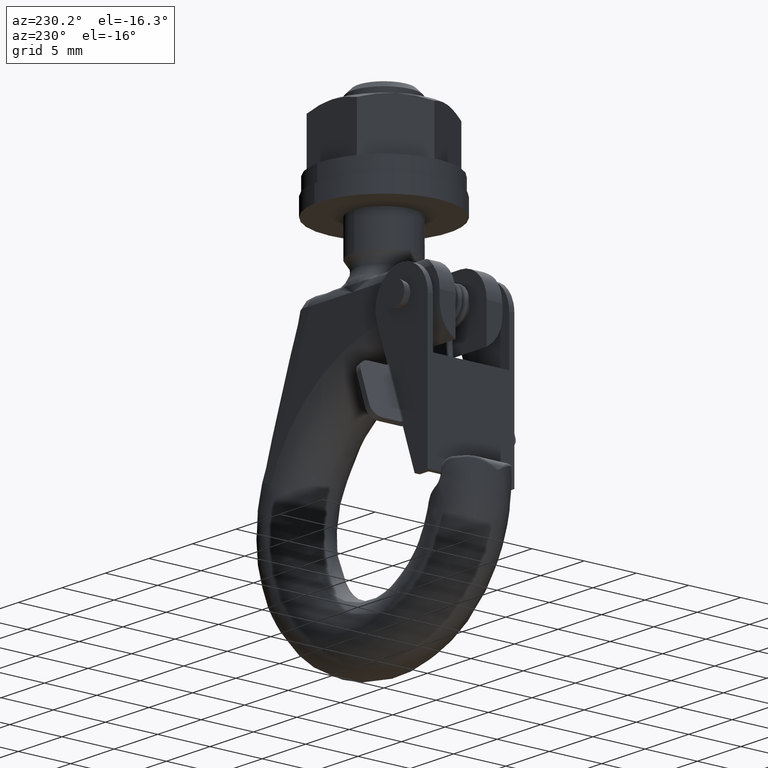
[diagram: clean part render]
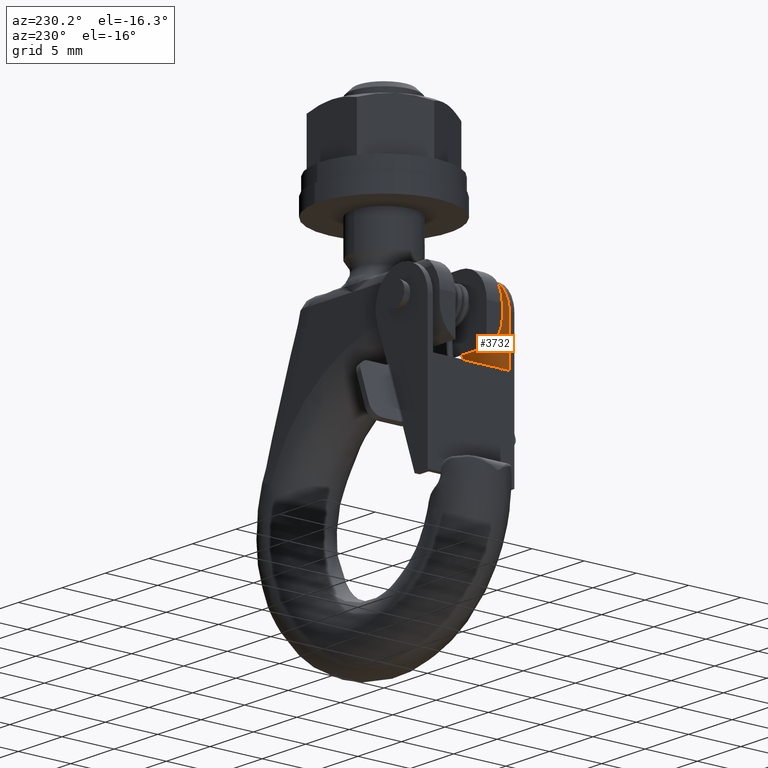
[diagram: same view with one face highlighted and labeled with its STEP entity id]
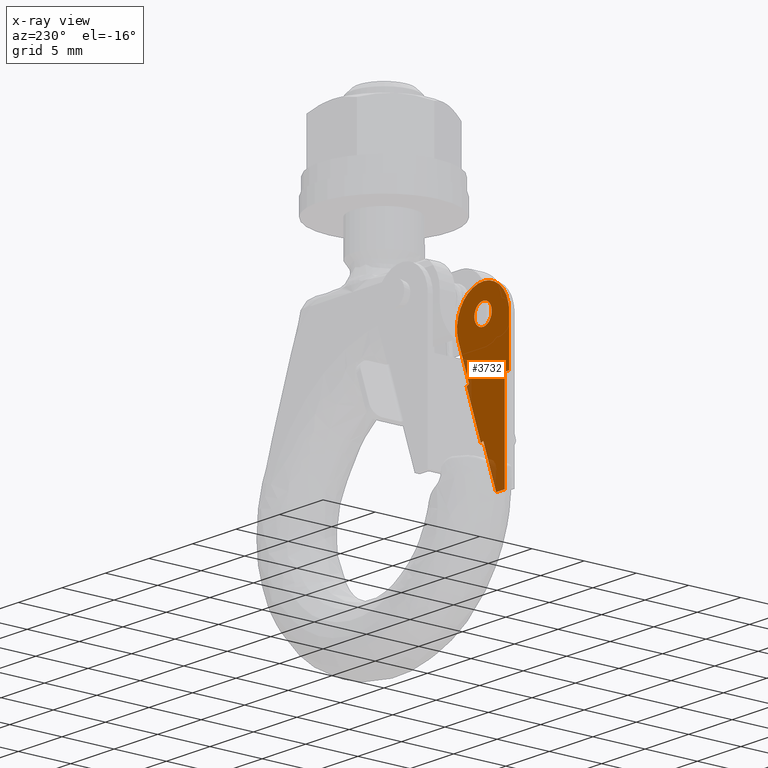
[diagram: x-ray of the same camera — body ghosted, the highlighted face saturated]
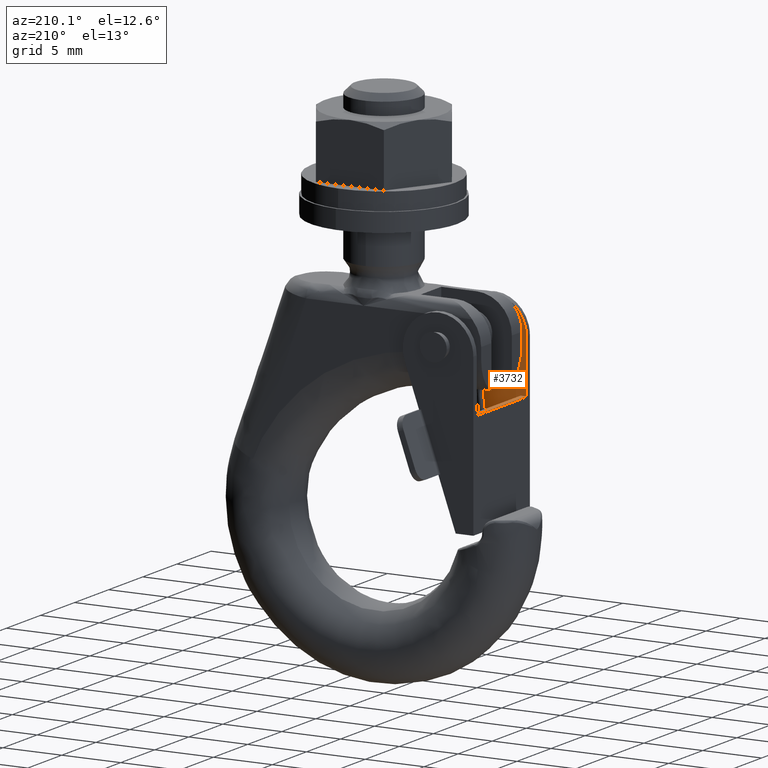
[diagram: same view with one face highlighted and labeled with its STEP entity id]
A machine part, auxiliary view. The second image highlights one B-rep face of the part: STEP entity #3732.
The next image is the same camera in x-ray: the body ghosted, the highlighted face saturated — about 4% of this face is hidden behind the body in this view.
A second angle (auxiliary view) of the same face is appended — the face is thin or edge-on in the first view.
In plain terms, the highlighted face is a freeform B-spline surface patch.
Its self-contained STEP definition (entity closure, byte-faithful):
#2635=CARTESIAN_POINT('',(-7.993009526350031,-3.649994000000101,14.118034234771480));
#2636=VERTEX_POINT('',#2635);
#2637=CARTESIAN_POINT('',(-7.0,-3.649994000000100,13.0));
#2638=VERTEX_POINT('',#2637);
#2639=CARTESIAN_POINT('',(-7.993009526350031,-3.649994000000100,14.118034234771478));
#2640=CARTESIAN_POINT('',(-8.0,-3.649994000000100,14.059224119767839));
#2641=CARTESIAN_POINT('',(-8.0,-3.649994000000100,14.0));
#2642=CARTESIAN_POINT('',(-8.0,-3.649994000000101,13.000000000000004));
#2643=CARTESIAN_POINT('',(-7.0,-3.649994000000100,13.0));
#2651=(BOUNDED_CURVE()B_SPLINE_CURVE(2,(#2639,#2640,#2641,#2642,#2643),.UNSPECIFIED.,.F.,.U.)B_SPLINE_CURVE_WITH_KNOTS((3,2,3),(0.229562473476596,0.250000000000000,0.500000000000000),.UNSPECIFIED.)CURVE()GEOMETRIC_REPRESENTATION_ITEM()RATIONAL_B_SPLINE_CURVE((0.956026754111350,0.976055948287900,1.0,0.707106781186548,1.0))REPRESENTATION_ITEM(''));
#2652=EDGE_CURVE('',#2636,#2638,#2651,.T.);
#2693=CARTESIAN_POINT('',(-6.001865201593130,-3.649994000000100,13.938951460219959));
#2694=VERTEX_POINT('',#2693);
#2700=CARTESIAN_POINT('',(-7.0,-3.649994000000100,13.0));
#2701=CARTESIAN_POINT('',(-6.059293933557320,-3.649994000000100,13.000000000000004));
#2702=CARTESIAN_POINT('',(-6.001865201593130,-3.649994000000100,13.938951460219959));
#2710=(BOUNDED_CURVE()B_SPLINE_CURVE(2,(#2700,#2701,#2702),.UNSPECIFIED.,.F.,.U.)B_SPLINE_CURVE_WITH_KNOTS((3,3),(0.500000000000000,0.739332962157199),.UNSPECIFIED.)CURVE()GEOMETRIC_REPRESENTATION_ITEM()RATIONAL_B_SPLINE_CURVE((1.0,0.719603993382479,0.976072041491526))REPRESENTATION_ITEM(''));
#2711=EDGE_CURVE('',#2638,#2694,#2710,.T.);
#2734=CARTESIAN_POINT('',(-7.0,-3.649994000000100,15.0));
#2735=VERTEX_POINT('',#2734);
#2736=CARTESIAN_POINT('',(-7.0,-3.649994000000100,15.0));
#2737=CARTESIAN_POINT('',(-7.888174525744710,-3.649994000000100,15.000000000000004));
#2738=CARTESIAN_POINT('',(-7.993009526350031,-3.649994000000101,14.118034234771477));
#2746=(BOUNDED_CURVE()B_SPLINE_CURVE(2,(#2736,#2737,#2738),.UNSPECIFIED.,.F.,.U.)B_SPLINE_CURVE_WITH_KNOTS((3,3),(0.0,0.229562473476596),.UNSPECIFIED.)CURVE()GEOMETRIC_REPRESENTATION_ITEM()RATIONAL_B_SPLINE_CURVE((1.0,0.731050832898648,0.956026754111350))REPRESENTATION_ITEM(''));
#2747=EDGE_CURVE('',#2735,#2636,#2746,.T.);
#2749=CARTESIAN_POINT('',(-6.001865201593130,-3.649994000000101,13.938951460219961));
#2750=CARTESIAN_POINT('',(-5.999999999999999,-3.649994000000101,13.969447236455540));
#2751=CARTESIAN_POINT('',(-6.0,-3.649994000000100,14.0));
#2752=CARTESIAN_POINT('',(-6.0,-3.649994000000101,14.999999999999995));
#2753=CARTESIAN_POINT('',(-7.0,-3.649994000000100,15.0));
#2761=(BOUNDED_CURVE()B_SPLINE_CURVE(2,(#2749,#2750,#2751,#2752,#2753),.UNSPECIFIED.,.F.,.U.)B_SPLINE_CURVE_WITH_KNOTS((3,2,3),(0.739332962157199,0.750000000000000,1.0),.UNSPECIFIED.)CURVE()GEOMETRIC_REPRESENTATION_ITEM()RATIONAL_B_SPLINE_CURVE((0.976072041491524,0.987502787804068,1.0,0.707106781186548,1.0))REPRESENTATION_ITEM(''));
#2762=EDGE_CURVE('',#2694,#2735,#2761,.T.);
#2937=CARTESIAN_POINT('',(-5.107966332229609,-3.649994000000000,8.878857992058922));
#2938=VERTEX_POINT('',#2937);
#2961=CARTESIAN_POINT('',(-6.744044208547670,-3.649994000000000,4.154111349233520));
#2962=VERTEX_POINT('',#2961);
#2976=CARTESIAN_POINT('',(-5.107966332229609,-3.649994000000000,8.878857992058922));
#2977=CARTESIAN_POINT('',(-6.744044208547670,-3.649994000000000,4.154111349233520));
#2978=QUASI_UNIFORM_CURVE('',1,(#2976,#2977),.UNSPECIFIED.,.F.,.U.);
#2979=EDGE_CURVE('',#2938,#2962,#2978,.T.);
#3464=CARTESIAN_POINT('',(-7.027519187421290,-3.649994000000100,4.252271294710510));
#3465=VERTEX_POINT('',#3464);
#3466=CARTESIAN_POINT('',(-6.744044208547670,-3.649994000000000,4.154111349233520));
#3467=CARTESIAN_POINT('',(-7.027519187421290,-3.649994000000100,4.252271294710510));
#3468=QUASI_UNIFORM_CURVE('',1,(#3466,#3467),.UNSPECIFIED.,.F.,.U.);
#3469=EDGE_CURVE('',#2962,#3465,#3468,.T.);
#3520=CARTESIAN_POINT('',(-5.391430622019710,-3.649994000000000,8.977013636226650));
#3521=VERTEX_POINT('',#3520);
#3522=CARTESIAN_POINT('',(-5.391430622019710,-3.649994000000000,8.977013636226650));
#3523=CARTESIAN_POINT('',(-5.107966332229609,-3.649994000000000,8.878857992058922));
#3524=QUASI_UNIFORM_CURVE('',1,(#3522,#3523),.UNSPECIFIED.,.F.,.U.);
#3525=EDGE_CURVE('',#3521,#2938,#3524,.T.);
#3552=CARTESIAN_POINT('',(-10.000000000001560,-3.649994000000210,9.000024782773728));
#3553=VERTEX_POINT('',#3552);
#3559=CARTESIAN_POINT('',(-9.500000000000000,-3.649994000000100,9.000024782775279));
#3560=VERTEX_POINT('',#3559);
#3561=CARTESIAN_POINT('',(-10.000000000001560,-3.649994000000210,9.000024782773728));
#3562=CARTESIAN_POINT('',(-9.500000000000000,-3.649994000000100,9.000024782775279));
#3563=QUASI_UNIFORM_CURVE('',1,(#3561,#3562),.UNSPECIFIED.,.F.,.U.);
#3564=EDGE_CURVE('',#3553,#3560,#3563,.T.);
#3587=CARTESIAN_POINT('',(-9.500000000000000,-3.649994000000100,0.0));
#3588=VERTEX_POINT('',#3587);
#3589=CARTESIAN_POINT('',(-9.500000000000000,-3.649994000000100,9.000024782775279));
#3590=CARTESIAN_POINT('',(-9.500000000000000,-3.649994000000100,0.0));
#3591=QUASI_UNIFORM_CURVE('',1,(#3589,#3590),.UNSPECIFIED.,.F.,.U.);
#3592=EDGE_CURVE('',#3560,#3588,#3591,.T.);
#3671=CARTESIAN_POINT('',(-10.299686140063850,-3.649994000000100,-0.823982521438727));
#3672=CARTESIAN_POINT('',(-10.299686140063850,-3.649994000000100,17.320130179594091));
#3673=CARTESIAN_POINT('',(-3.700590942439227,-3.649994000000100,-0.823982521438727));
#3674=CARTESIAN_POINT('',(-3.700590942439227,-3.649994000000100,17.320130179594091));
#3675=B_SPLINE_SURFACE_WITH_KNOTS('',1,1,((#3671,#3673),(#3672,#3674)),.UNSPECIFIED.,.F.,.F.,.U.,(2,2),(2,2),(0.0,18.144112701032810),(0.0,6.599095197624623),.UNSPECIFIED.);
#3676=ORIENTED_EDGE('',*,*,#3525,.T.);
#3677=ORIENTED_EDGE('',*,*,#2979,.T.);
#3678=ORIENTED_EDGE('',*,*,#3469,.T.);
#3679=CARTESIAN_POINT('',(-8.500000000000101,-3.649994000000100,0.0));
#3680=VERTEX_POINT('',#3679);
#3681=CARTESIAN_POINT('',(-8.500000000000101,-3.649994000000100,0.0));
#3682=CARTESIAN_POINT('',(-7.027519187421290,-3.649994000000100,4.252271294710510));
#3683=QUASI_UNIFORM_CURVE('',1,(#3681,#3682),.UNSPECIFIED.,.F.,.U.);
#3684=EDGE_CURVE('',#3680,#3465,#3683,.T.);
#3685=ORIENTED_EDGE('',*,*,#3684,.F.);
#3686=CARTESIAN_POINT('',(-9.500000000000000,-3.649994000000100,0.0));
#3687=CARTESIAN_POINT('',(-8.500000000000101,-3.649994000000100,0.0));
#3688=QUASI_UNIFORM_CURVE('',1,(#3686,#3687),.UNSPECIFIED.,.F.,.U.);
#3689=EDGE_CURVE('',#3588,#3680,#3688,.T.);
#3690=ORIENTED_EDGE('',*,*,#3689,.F.);
#3691=ORIENTED_EDGE('',*,*,#3592,.F.);
#3692=ORIENTED_EDGE('',*,*,#3564,.F.);
#3693=CARTESIAN_POINT('',(-10.0,-3.649994000000210,13.499999738200600));
#3694=VERTEX_POINT('',#3693);
#3695=CARTESIAN_POINT('',(-10.000000000001560,-3.649994000000210,9.000024782773728));
#3696=CARTESIAN_POINT('',(-10.0,-3.649994000000210,13.499999738200600));
#3697=QUASI_UNIFORM_CURVE('',1,(#3695,#3696),.UNSPECIFIED.,.F.,.U.);
#3698=EDGE_CURVE('',#3553,#3694,#3697,.T.);
#3699=ORIENTED_EDGE('',*,*,#3698,.T.);
#3700=CARTESIAN_POINT('',(-4.165131000000000,-3.649994000000100,12.518356000000001));
#3701=VERTEX_POINT('',#3700);
#3702=CARTESIAN_POINT('',(-4.165131000000006,-3.649994000000100,12.518356000000001));
#3703=CARTESIAN_POINT('',(-3.523159129503025,-3.649994000000100,14.372260331795710));
#3704=CARTESIAN_POINT('',(-4.964222855810250,-3.649994000000100,15.703584668943449));
#3705=CARTESIAN_POINT('',(-6.405286582117476,-3.649994000000100,17.034909006091173));
#3706=CARTESIAN_POINT('',(-8.202647742310653,-3.649994000000100,16.248409156256891));
#3707=CARTESIAN_POINT('',(-10.000008902503827,-3.649994000000100,15.461909306422607));
#3708=CARTESIAN_POINT('',(-10.0,-3.649994000000210,13.499999738200600));
#3716=(BOUNDED_CURVE()B_SPLINE_CURVE(2,(#3702,#3703,#3704,#3705,#3706,#3707,#3708),.UNSPECIFIED.,.F.,.U.)B_SPLINE_CURVE_WITH_KNOTS((3,2,2,3),(0.0,0.333333333333333,0.666666666666667,1.0),.UNSPECIFIED.)CURVE()GEOMETRIC_REPRESENTATION_ITEM()RATIONAL_B_SPLINE_CURVE((1.0,0.836923146589147,1.0,0.836923146589147,1.0,0.836923146589147,1.0))REPRESENTATION_ITEM(''));
#3717=EDGE_CURVE('',#3701,#3694,#3716,.T.);
#3718=ORIENTED_EDGE('',*,*,#3717,.F.);
#3719=CARTESIAN_POINT('',(-5.391430622019710,-3.649994000000000,8.977013636226650));
#3720=CARTESIAN_POINT('',(-4.165131000000000,-3.649994000000100,12.518356000000001));
#3721=QUASI_UNIFORM_CURVE('',1,(#3719,#3720),.UNSPECIFIED.,.F.,.U.);
#3722=EDGE_CURVE('',#3521,#3701,#3721,.T.);
#3723=ORIENTED_EDGE('',*,*,#3722,.F.);
#3724=EDGE_LOOP('',(#3676,#3677,#3678,#3685,#3690,#3691,#3692,#3699,#3718,#3723));
#3725=FACE_OUTER_BOUND('',#3724,.T.);
#3726=ORIENTED_EDGE('',*,*,#2711,.T.);
#3727=ORIENTED_EDGE('',*,*,#2762,.T.);
#3728=ORIENTED_EDGE('',*,*,#2747,.T.);
#3729=ORIENTED_EDGE('',*,*,#2652,.T.);
#3730=EDGE_LOOP('',(#3726,#3727,#3728,#3729));
#3731=FACE_BOUND('',#3730,.T.);
#3732=ADVANCED_FACE('',(#3725,#3731),#3675,.T.);